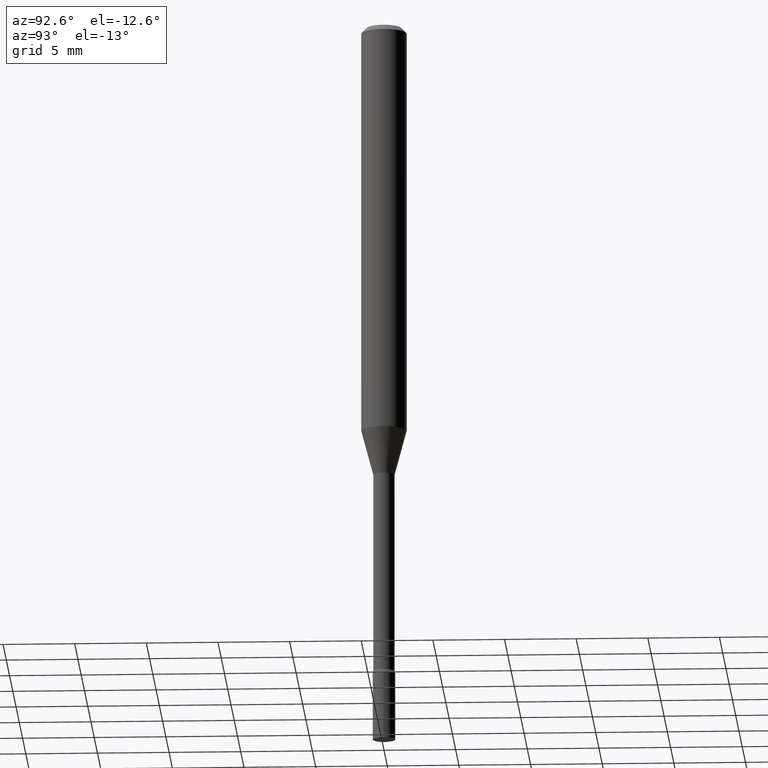
[diagram: clean part render]
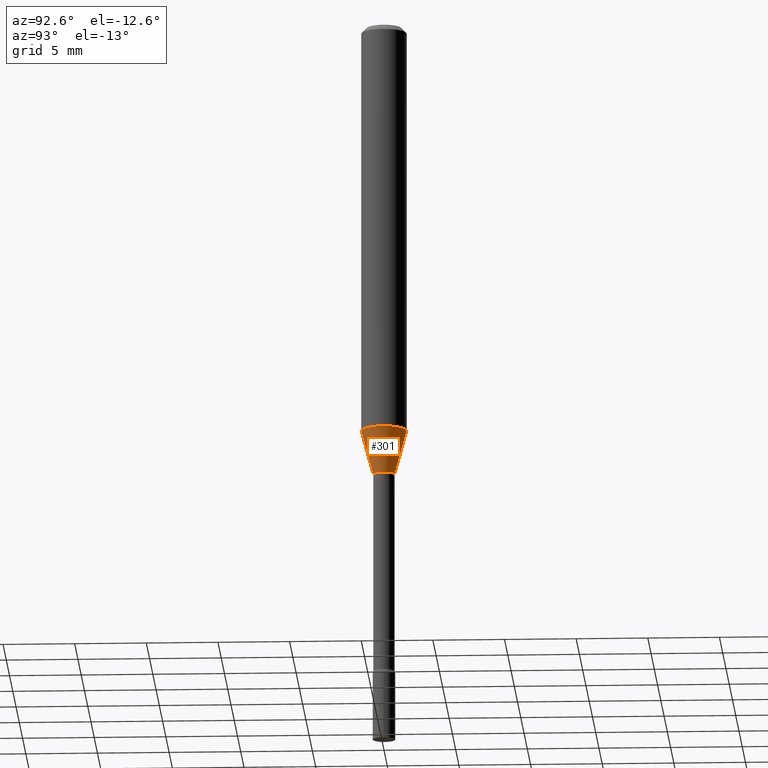
[diagram: same view with one face highlighted and labeled with its STEP entity id]
A machine part, auxiliary view. The second image highlights one B-rep face of the part: STEP entity #301.
In plain terms, the highlighted conical surface has half-angle 15 deg.
Its self-contained STEP definition (entity closure, byte-faithful):
#5 = EDGE_CURVE ( 'NONE', #412, #327, #11, .T. ) ;
#8 = DIRECTION ( 'NONE',  ( -2.445464431541942491E-29, 3.491487603581188597E-15, 1.000000000000000000 ) ) ;
#10 = CARTESIAN_POINT ( 'NONE',  ( 2.107548809651993782E-16, 0.02966111260565959876, -1.254092501787273051 ) ) ;
#11 = LINE ( 'NONE', #242, #453 ) ;
#17 = CARTESIAN_POINT ( 'NONE',  ( -2.071224423039705106E-16, -0.02966111260566835564, -1.254092501787273051 ) ) ;
#43 = CARTESIAN_POINT ( 'NONE',  ( 3.066838606984226100E-29, -4.378648423734383663E-15, -1.254092501787273051 ) ) ;
#76 = ORIENTED_EDGE ( 'NONE', *, *, #470, .T. ) ;
#80 = FACE_OUTER_BOUND ( 'NONE', #108, .T. ) ;
#82 = CIRCLE ( 'NONE', #227, 0.06250000000000000000 ) ;
#88 = CARTESIAN_POINT ( 'NONE',  ( 3.066838606984226100E-29, -4.378648423734383663E-15, -1.254092501787273051 ) ) ;
#89 = VERTEX_POINT ( 'NONE', #107 ) ;
#99 = CONICAL_SURFACE ( 'NONE', #317, 0.02966111260566397720, 0.2617993877991502960 ) ;
#107 = CARTESIAN_POINT ( 'NONE',  ( 4.440892098500899305E-16, 0.06249999999999602401, -1.131536105567578554 ) ) ;
#108 = EDGE_LOOP ( 'NONE', ( #293, #76, #222, #456 ) ) ;
#125 = DIRECTION ( 'NONE',  ( -6.982962677686265133E-15, -1.000000000000000000, 0.000000000000000000 ) ) ;
#154 = DIRECTION ( 'NONE',  ( -2.445464431541942491E-29, 3.491487603581188597E-15, 1.000000000000000000 ) ) ;
#178 = AXIS2_PLACEMENT_3D ( 'NONE', #88, #8, #125 ) ;
#196 = VECTOR ( 'NONE', #247, 39.37007874015748143 ) ;
#211 = EDGE_CURVE ( 'NONE', #327, #89, #82, .T. ) ;
#222 = ORIENTED_EDGE ( 'NONE', *, *, #211, .F. ) ;
#227 = AXIS2_PLACEMENT_3D ( 'NONE', #501, #298, #460 ) ;
#242 = CARTESIAN_POINT ( 'NONE',  ( -2.071224423039705106E-16, -0.02966111260566835564, -1.254092501787273051 ) ) ;
#247 = DIRECTION ( 'NONE',  ( 1.839019923739601104E-15, 0.2588190451025250693, 0.9659258262890670910 ) ) ;
#293 = ORIENTED_EDGE ( 'NONE', *, *, #437, .T. ) ;
#298 = DIRECTION ( 'NONE',  ( -2.445464431541942491E-29, 3.491487603581188597E-15, 1.000000000000000000 ) ) ;
#301 = ADVANCED_FACE ( 'NONE', ( #80 ), #99, .T. ) ;
#317 = AXIS2_PLACEMENT_3D ( 'NONE', #43, #154, #479 ) ;
#327 = VERTEX_POINT ( 'NONE', #435 ) ;
#342 = CIRCLE ( 'NONE', #178, 0.02966111260566397720 ) ;
#368 = CARTESIAN_POINT ( 'NONE',  ( 3.274220454076449378E-16, 0.02966111260565960223, -1.254092501787273051 ) ) ;
#392 = VERTEX_POINT ( 'NONE', #368 ) ;
#404 = DIRECTION ( 'NONE',  ( -1.807323732225330928E-15, -0.2588190451025182970, 0.9659258262890689783 ) ) ;
#412 = VERTEX_POINT ( 'NONE', #17 ) ;
#435 = CARTESIAN_POINT ( 'NONE',  ( -4.364351673553641579E-16, -0.06250000000000396905, -1.131536105567578110 ) ) ;
#437 = EDGE_CURVE ( 'NONE', #412, #392, #342, .T. ) ;
#453 = VECTOR ( 'NONE', #404, 39.37007874015748143 ) ;
#456 = ORIENTED_EDGE ( 'NONE', *, *, #5, .F. ) ;
#460 = DIRECTION ( 'NONE',  ( -6.982962677686265922E-15, -1.000000000000000000, 4.370956789862821150E-15 ) ) ;
#470 = EDGE_CURVE ( 'NONE', #392, #89, #494, .T. ) ;
#479 = DIRECTION ( 'NONE',  ( -6.982962677686265133E-15, -1.000000000000000000, 0.000000000000000000 ) ) ;
#494 = LINE ( 'NONE', #10, #196 ) ;
#501 = CARTESIAN_POINT ( 'NONE',  ( 2.767131299171001299E-29, -3.950744285593735369E-15, -1.131536105567578332 ) ) ;